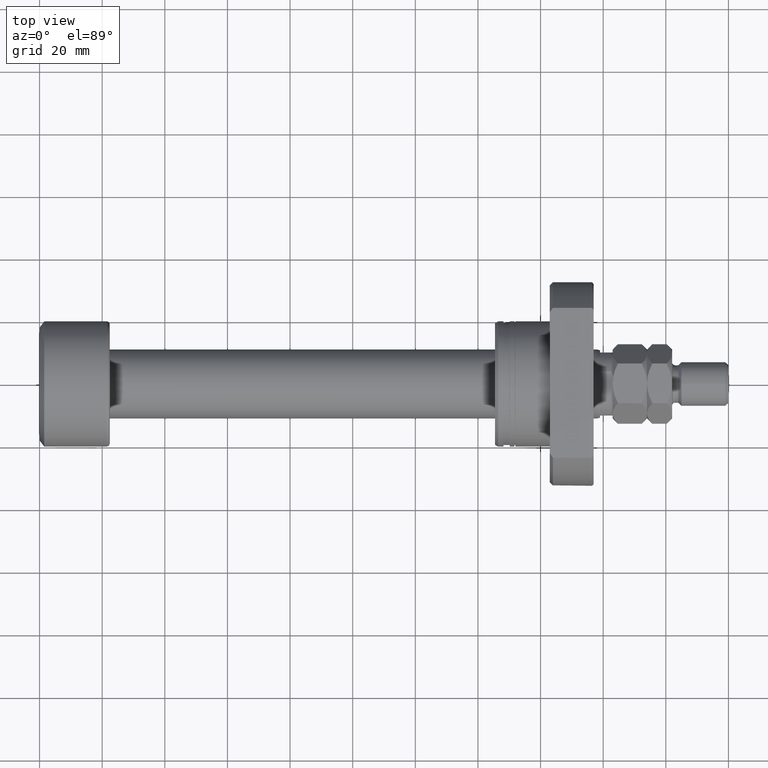
[diagram: clean part render]
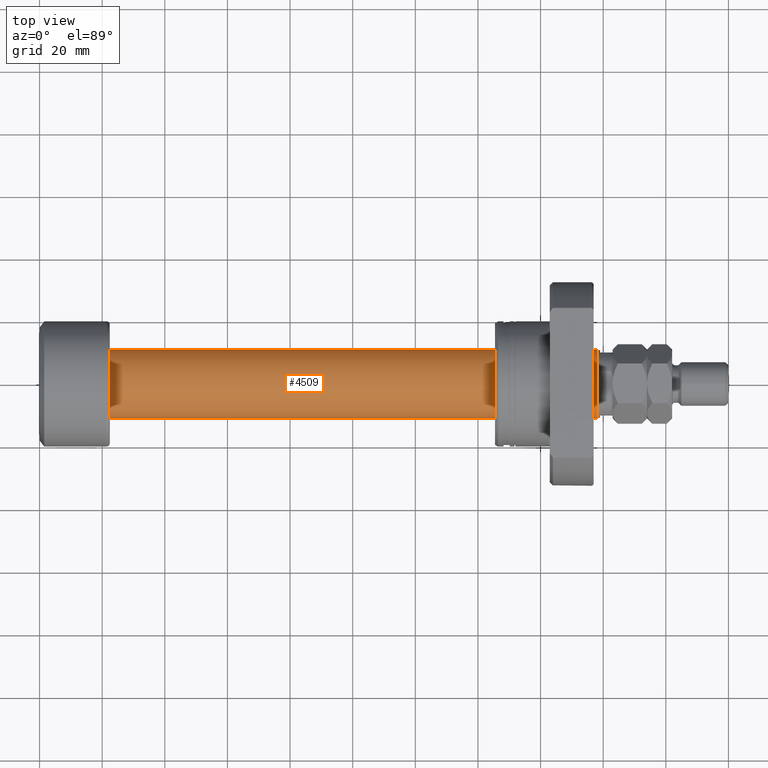
[diagram: same view with one face highlighted and labeled with its STEP entity id]
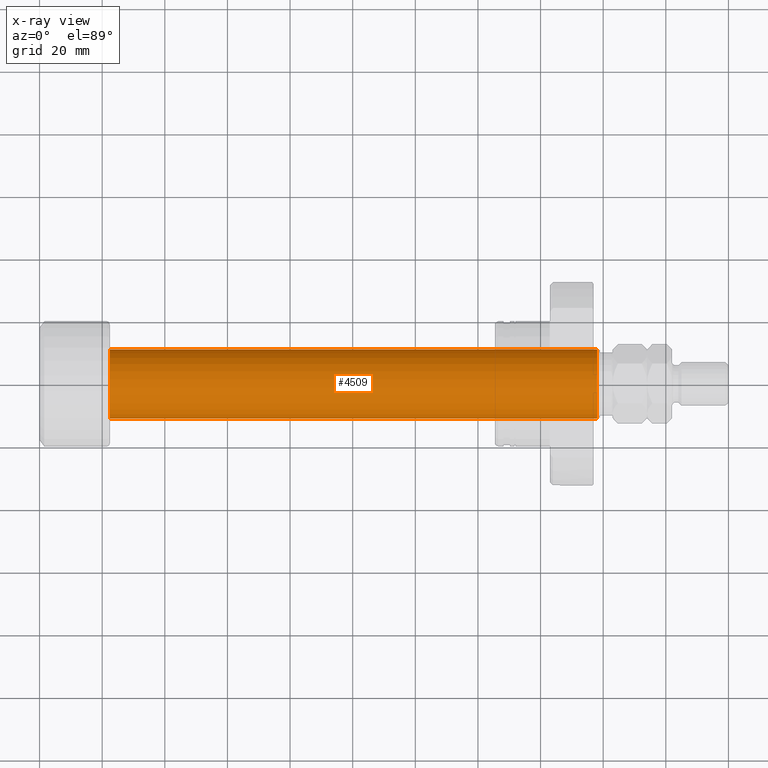
[diagram: x-ray of the same camera — body ghosted, the highlighted face saturated]
A machine part, top view. The second image highlights one B-rep face of the part: STEP entity #4509.
The next image is the same camera in x-ray: the body ghosted, the highlighted face saturated — about 0% of this face is hidden behind the body in this view.
In plain terms, the highlighted cylindrical surface (edge-blend (fillet) strip) has radius 11 mm, axis along (-1, -0, -0).
Its self-contained STEP definition (entity closure, byte-faithful):
#237 = CIRCLE ( 'NONE', #2953, 11.00000000000000000 ) ;
#398 = CARTESIAN_POINT ( 'NONE',  ( 22.40000000000000924, -11.00000000000000000, 0.000000000000000000 ) ) ;
#528 = CARTESIAN_POINT ( 'NONE',  ( 22.40000000000000924, 11.00000000000000000, 1.347111479062094321E-15 ) ) ;
#727 = EDGE_CURVE ( 'NONE', #1829, #3240, #3789, .T. ) ;
#1112 = CARTESIAN_POINT ( 'NONE',  ( 1.176496554275982688E-16, -11.00000000000009592, 0.000000000000000000 ) ) ;
#1119 = CARTESIAN_POINT ( 'NONE',  ( 0.000000000000000000, 0.000000000000000000, 0.000000000000000000 ) ) ;
#1184 = ORIENTED_EDGE ( 'NONE', *, *, #1985, .F. ) ;
#1457 = CYLINDRICAL_SURFACE ( 'NONE', #2441, 11.00000000000009592 ) ;
#1510 = CARTESIAN_POINT ( 'NONE',  ( -1.176496554275982688E-16, 11.00000000000009592, 1.347111479062100435E-15 ) ) ;
#1587 = LINE ( 'NONE', #1510, #2199 ) ;
#1606 = ORIENTED_EDGE ( 'NONE', *, *, #727, .T. ) ;
#1752 = DIRECTION ( 'NONE',  ( 1.069542322069065801E-17, -1.000000000000000000, 0.000000000000000000 ) ) ;
#1829 = VERTEX_POINT ( 'NONE', #3607 ) ;
#1870 = CARTESIAN_POINT ( 'NONE',  ( 22.40000000000000924, 2.395774801434708725E-16, 0.000000000000000000 ) ) ;
#1985 = EDGE_CURVE ( 'NONE', #1829, #3232, #2947, .T. ) ;
#2199 = VECTOR ( 'NONE', #2283, 1000.000000000000000 ) ;
#2283 = DIRECTION ( 'NONE',  ( -1.000000000000000000, -1.069542322069065801E-17, -0.000000000000000000 ) ) ;
#2318 = ORIENTED_EDGE ( 'NONE', *, *, #3029, .F. ) ;
#2441 = AXIS2_PLACEMENT_3D ( 'NONE', #1119, #3614, #1752 ) ;
#2934 = AXIS2_PLACEMENT_3D ( 'NONE', #3485, #3032, #3386 ) ;
#2947 = LINE ( 'NONE', #1112, #4582 ) ;
#2953 = AXIS2_PLACEMENT_3D ( 'NONE', #1870, #3346, #3492 ) ;
#3029 = EDGE_CURVE ( 'NONE', #3232, #3430, #237, .T. ) ;
#3032 = DIRECTION ( 'NONE',  ( -1.000000000000000000, -1.069542322069065801E-17, -0.000000000000000000 ) ) ;
#3232 = VERTEX_POINT ( 'NONE', #398 ) ;
#3240 = VERTEX_POINT ( 'NONE', #4731 ) ;
#3346 = DIRECTION ( 'NONE',  ( -1.000000000000000000, -1.069542322069065801E-17, -0.000000000000000000 ) ) ;
#3386 = DIRECTION ( 'NONE',  ( 0.000000000000000000, -1.000000000000000000, 0.000000000000000000 ) ) ;
#3430 = VERTEX_POINT ( 'NONE', #528 ) ;
#3452 = ORIENTED_EDGE ( 'NONE', *, *, #4232, .T. ) ;
#3485 = CARTESIAN_POINT ( 'NONE',  ( 178.0667575123237611, 1.904499333130400251E-15, 0.000000000000000000 ) ) ;
#3492 = DIRECTION ( 'NONE',  ( 0.000000000000000000, -1.000000000000000000, 0.000000000000000000 ) ) ;
#3531 = EDGE_LOOP ( 'NONE', ( #1606, #3452, #2318, #1184 ) ) ;
#3607 = CARTESIAN_POINT ( 'NONE',  ( 178.0667575123237611, -11.00000000000019362, 0.000000000000000000 ) ) ;
#3614 = DIRECTION ( 'NONE',  ( -1.000000000000000000, -1.069542322069065801E-17, -0.000000000000000000 ) ) ;
#3789 = CIRCLE ( 'NONE', #2934, 11.00000000000019540 ) ;
#3998 = FACE_OUTER_BOUND ( 'NONE', #3531, .T. ) ;
#4232 = EDGE_CURVE ( 'NONE', #3240, #3430, #1587, .T. ) ;
#4509 = ADVANCED_FACE ( 'NONE', ( #3998 ), #1457, .T. ) ;
#4582 = VECTOR ( 'NONE', #4770, 1000.000000000000000 ) ;
#4731 = CARTESIAN_POINT ( 'NONE',  ( 178.0667575123237611, 11.00000000000019718, 1.347111479062112662E-15 ) ) ;
#4770 = DIRECTION ( 'NONE',  ( -1.000000000000000000, -1.069542322069065801E-17, -0.000000000000000000 ) ) ;